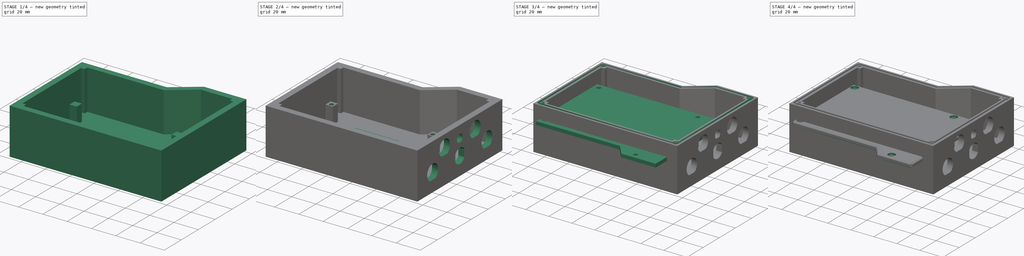
[diagram: build sequence overview — one tinted view per stage of 4, left to right]
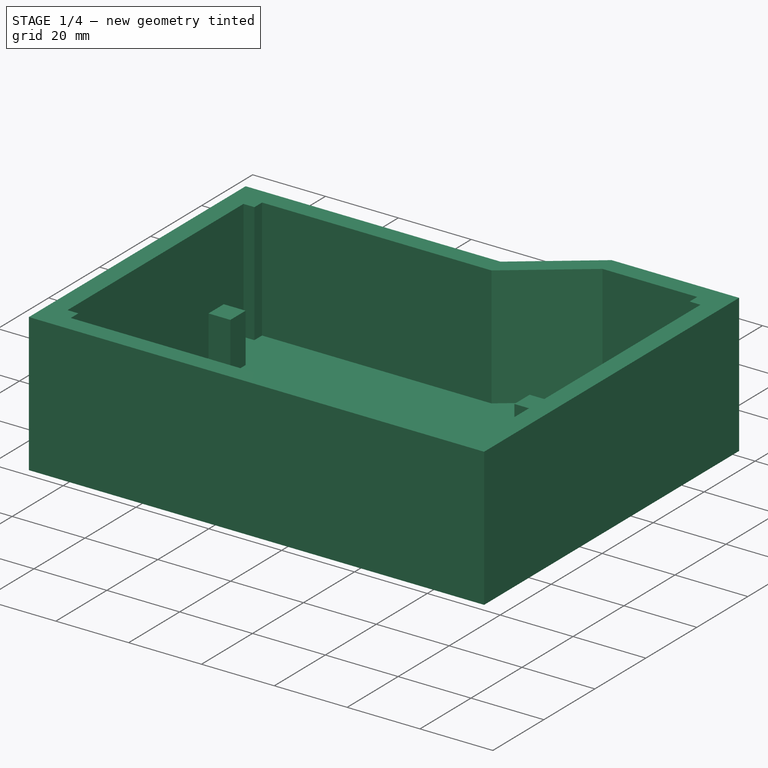
[diagram: stage 1 of 4 — iso view after this stage's code; geometry added in this stage tinted green]
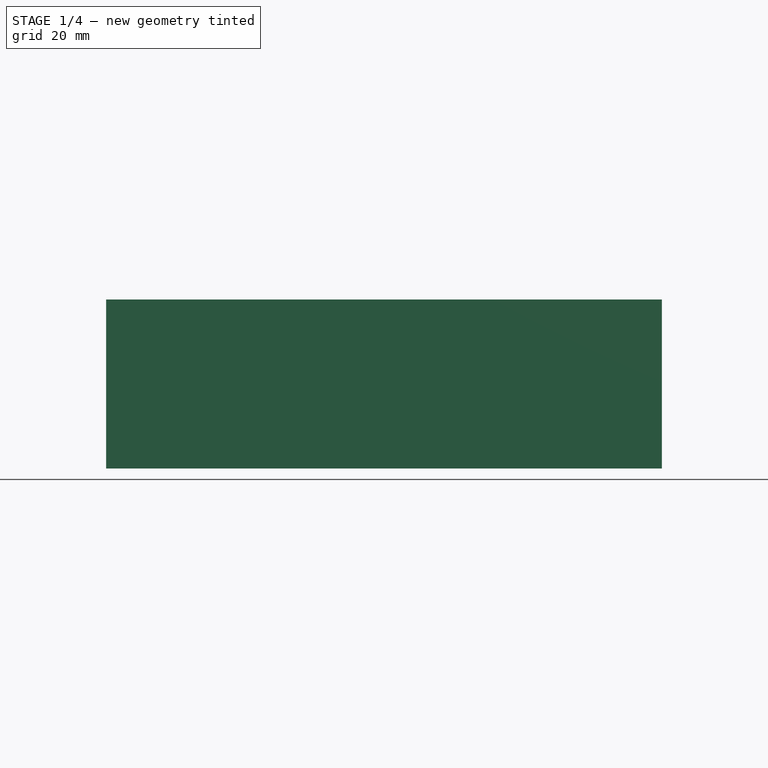
[diagram: stage 1 of 4 — front view after this stage's code; geometry added in this stage tinted green]
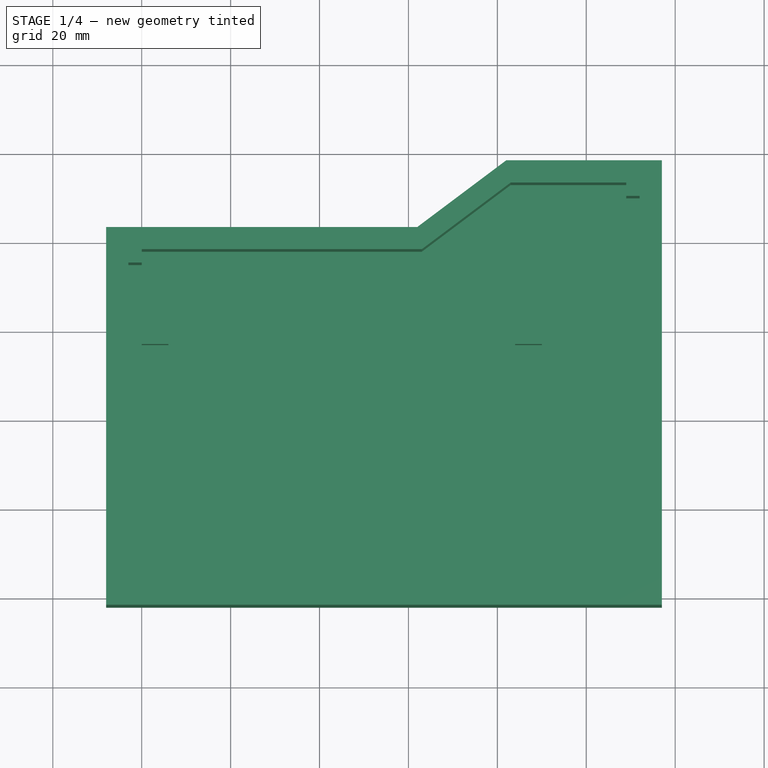
[diagram: stage 1 of 4 — top view after this stage's code; geometry added in this stage tinted green]
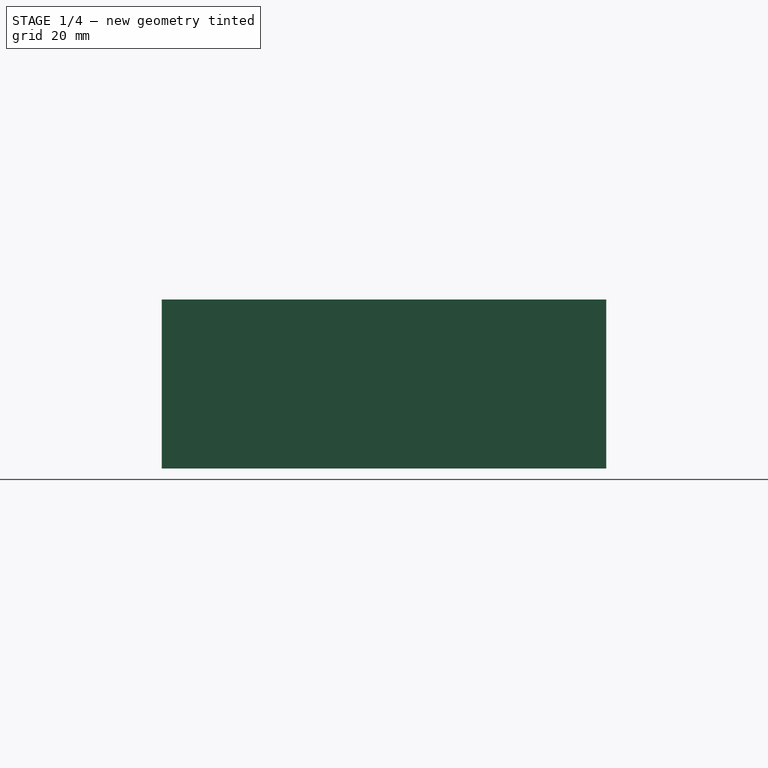
[diagram: stage 1 of 4 — right view after this stage's code; geometry added in this stage tinted green]
FCSTD DOCUMENT  (FreeCAD 1.0R38641 +678 (Git))
Label: KATIPO_1.0.0
License: All rights reserved
LicenseURL: https://en.wikipedia.org/wiki/All_rights_reserved
objects: Part::Feature×57, App::Part×19, Sketcher::SketchObject×14, PartDesign::Pad×5, PartDesign::Pocket×4, PartDesign::ShapeBinder×4, PartDesign::Body×3, PartDesign::Hole×3, PartDesign::Chamfer×1
note: 131 computed .brp shape members not serialized (recipe doc carries the construction recipe); baked Part::Feature solids carry a one-line shape summary decoded from their .brp

FEATURE [Sketcher::SketchObject] Sketch
  ArcFitTolerance = 1e-06
  AttachmentSupport = -> [XY_Plane001]
  FullyConstrained = true
  MakeInternals = false
  MapMode = 5
  sketch-geometry (6):
    g0: LineSegment StartX=-8 StartY=-2 StartZ=0 EndX=117 EndY=-2 EndZ=0
    g1: LineSegment StartX=117 StartY=-2 StartZ=0 EndX=117 EndY=98 EndZ=0
    g2: LineSegment StartX=62 StartY=83 StartZ=0 EndX=-8 EndY=83 EndZ=0
    g3: LineSegment StartX=-8 StartY=83 StartZ=0 EndX=-8 EndY=-2 EndZ=0
    g4: LineSegment StartX=62 StartY=83 StartZ=0 EndX=82 EndY=98 EndZ=0
    g5: LineSegment StartX=82 StartY=98 StartZ=0 EndX=117 EndY=98 EndZ=0
  constraints (18):
    c: Coincident(g2,g3)
    c: Coincident(g3,g0)
    c: Horizontal(g0)
    c: Horizontal(g2)
    c: Vertical(g1)
    c: Vertical(g3)
    c: DistanceY(g3,g3) = 85
    c: DistanceY(g0,g-1) = 2
    c: DistanceX(g0,g-1) = 8
    c: Coincident(g5,g4)
    c: Horizontal(g5)
    c: Coincident(g2,g4)
    c: Coincident(g1,g0)
    c: Coincident(g1,g5)
    c: DistanceX(g2,g2) = 70
    c: DistanceX(g5,g5) = 35
    c: DistanceX(g2,g4) = 20
    c: DistanceY(g2,g4) = 15
FEATURE [PartDesign::Pad] Pad
  Direction = (0,0,1)
  Length = 38
  Length2 = 10
  Profile = -> Sketch
  ReferenceAxis = -> Sketch [N_Axis]
  Refine = true
  Suppressed = false
  Type = 0
FEATURE [Sketcher::SketchObject] Sketch001
  ArcFitTolerance = 1e-06
  AttachmentSupport = -> [Pad]
  FullyConstrained = true
  MakeInternals = false
  MapMode = 5
  Placement = pos=(0,0,38) rot=(0,0,1;0rad)
  sketch-geometry (14):
    g0: LineSegment StartX=-3 StartY=75 StartZ=0 EndX=-3 EndY=6 EndZ=0
    g1: LineSegment StartX=0 StartY=3 StartZ=0 EndX=109 EndY=3 EndZ=0
    g2: LineSegment StartX=109 StartY=3 StartZ=0 EndX=109 EndY=6 EndZ=0
    g3: LineSegment StartX=63 StartY=78 StartZ=0 EndX=0 EndY=78 EndZ=0
    g4: LineSegment StartX=63 StartY=78 StartZ=0 EndX=83 EndY=93 EndZ=0
    g5: LineSegment StartX=83 StartY=93 StartZ=0 EndX=109 EndY=93 EndZ=0
    g6: LineSegment StartX=-3 StartY=75 StartZ=0 EndX=0 EndY=75 EndZ=0
    g7: LineSegment StartX=0 StartY=75 StartZ=0 EndX=0 EndY=78 EndZ=0
    g8: LineSegment StartX=-3 StartY=6 StartZ=0 EndX=0 EndY=6 EndZ=0
    g9: LineSegment StartX=0 StartY=6 StartZ=0 EndX=0 EndY=3 EndZ=0
    g10: LineSegment StartX=109 StartY=90 StartZ=0 EndX=112 EndY=90 EndZ=0
    g11: LineSegment StartX=112 StartY=90 StartZ=0 EndX=112 EndY=6 EndZ=0
    g12: LineSegment StartX=112 StartY=6 StartZ=0 EndX=109 EndY=6 EndZ=0
    g13: LineSegment StartX=109 StartY=90 StartZ=0 EndX=109 EndY=93 EndZ=0
  constraints (43):
    c: Vertical(g0)
    c: Vertical(g2)
    c: Horizontal(g1)
    c: Horizontal(g3)
    c: Coincident(g4,g5)
    c: Horizontal(g5)
    c: Coincident(g3,g4)
    c: DistanceX(g3,g4) = 20
    c: DistanceY(g3,g4) = 15
    c: Horizontal(g6)
    c: Coincident(g6,g7)
    c: Coincident(g8,g9)
    c: Coincident(g3,g7)
    c: Coincident(g0,g6)
    c: Coincident(g0,g8)
    c: Coincident(g1,g9)
    c: DistanceX(g8,g8) = 3
    c: DistanceX(g8,g1) = 0
    c: DistanceY(g0,g8) = 0
    c: DistanceY(g1,g0) = 3
    c: DistanceY(g7,g7) = 3
    c: DistanceX(g0,g6) = 3
    c: DistanceX(g6,g3) = 0
    c: DistanceY(g0,g0) = 69
    c: DistanceX(g-1,g1) = 0
    c: DistanceY(g-1,g1) = 3
    c: DistanceX(g5,g5) = 26
    c: DistanceX(g1,g1) = 109
    c: Coincident(g5,g13)
    c: Coincident(g2,g1)
    c: PointOnObject(g10,g13)
    c: Horizontal(g10)
    c: Coincident(g10,g11)
    c: Vertical(g11)
    c: Coincident(g11,g12)
    c: Horizontal(g12)
    c: DistanceX(g10,g10) = 3
    c: Coincident(g2,g12)
    c: PointOnObject(g13,g10)
    c: DistanceX(g12,g12) = 3
    c: DistanceX(g5,g10) = 0
    c: DistanceY(g10,g5) = 3
    c: DistanceY(g1,g2) = 3
FEATURE [PartDesign::Pocket] Pocket
  BaseFeature = -> Pad
  Direction = (0,0,-1)
  Length = 33
  Length2 = 5
  Profile = -> Sketch001
  ReferenceAxis = -> Sketch001 [N_Axis]
  Refine = true
  Suppressed = false
  Type = 0
FEATURE [PartDesign::Body] Body002
  AllowCompound = false
  Group = -> [CopyPad011,Sketch022,Pad010,Sketch023,Hole002,Sketch024,Pocket007,Chamfer001]
  Origin = -> Origin011
  Placement = pos=(0,0,-2.5) rot=(0,0,1;0rad)
  Tip = -> Chamfer001
FEATURE [App::Part] Part002  label="Roof"
  Group = -> [Body002]
  Origin = -> Origin010
FEATURE [Part::Feature] Part__Feature649  label="SOLID"
  shape: bbox 69.6 x 45 x 3.826 mm, 49 faces (baked)
FEATURE [Part::Feature] Part__Feature650  label="COMPOUND012"
  shape: bbox 32.75 x 7.05 x 4.08 mm, 14 faces, 0 solids (baked)
FEATURE [Part::Feature] Part__Feature651  label="COMPOUND013"
  shape: bbox 65.6 x 17.6 x 4.08 mm, 32 faces, 0 solids (baked)
FEATURE [Part::Feature] Part__Feature652  label="COMPOUND014"
  shape: bbox 32.75 x 7.05 x 4.08 mm, 12 faces, 0 solids (baked)
FEATURE [Part::Feature] Part__Feature653  label="COMPOUND015"
  shape: bbox 63.59 x 1.2 x 0.8 mm, 10 faces, 0 solids (baked)
FEATURE [Part::Feature] Part__Feature654  label="COMPOUND016"
  shape: bbox 65.6 x 39.3 x 1.404 mm, 40 faces, 0 solids (baked)
FEATURE [Part::Feature] Part__Feature655  label="COMPOUND017"
  shape: bbox 63.6 x 1.2 x 0.8 mm, 14 faces, 0 solids (baked)
FEATURE [Part::Feature] Part__Feature656  label="COMPOUND018"
  shape: bbox 12.1 x 8.6 x 5.08 mm, 6 faces, 0 solids (baked)
FEATURE [Part::Feature] Part__Feature657  label="COMPOUND019"
  shape: bbox 12.1 x 8.6 x 5.08 mm, 6 faces, 0 solids (baked)
FEATURE [Part::Feature] Part__Feature658  label="COMPOUND020"
  shape: bbox 37.8 x 38.01 x 2.626 mm, 6 faces, 0 solids (baked)
FEATURE [Part::Feature] Part__Feature659  label="COMPOUND021"
  shape: bbox 14.56 x 14.2 x 1.2 mm, 6 faces, 0 solids (baked)
FEATURE [Part::Feature] Part__Feature660  label="COMPOUND022"
  shape: bbox 14.56 x 14.2 x 1.2 mm, 6 faces, 0 solids (baked)
FEATURE [App::Part] COMPOUND001  label="COMPOUND023"
  Group = -> [Part__Feature650,Part__Feature651,Part__Feature652,Part__Feature653,Part__Feature654,Part__Feature655,Part__Feature656,Part__Feature657,Part__Feature658,Part__Feature659,Part__Feature660]
  Origin = -> Origin016
FEATURE [App::Part] GROGU_BOARD_MEMORY001
  Group = -> [Part__Feature649,COMPOUND001]
  Origin = -> Origin017
  Placement = pos=(73.5,22.5,10) rot=(0,1,0;3.14159rad)
FEATURE [Part::Feature] Part__Feature661  label="SOLID002"
  shape: bbox 13 x 1.9 x 5.3 mm, 967 faces (baked)
FEATURE [App::Part] _051101592  label="5051101592"
  Group = -> [Part__Feature661]
  Origin = -> Origin018
  Placement = pos=(43.85,-5.875,1.595) rot=(0.57735,0.57735,0.57735;2.0944rad)
FEATURE [Part::Feature] Part__Feature662  label="JST_GH_SM04B-GHS-TB_1x04-1MP_P1.25mm_Horizontal"
  Placement = pos=(-5.72665,-26.5,1.595) rot=(0,0,1;0rad)
  shape: bbox 8.25 x 4.95 x 4.25 mm, 203 faces (baked)
FEATURE [Part::Feature] Part__Feature663  label="JST_GH_SM08B-GHS-TB_1x08-1MP_P1.25mm_Horizontal"
  Placement = pos=(-26.5757,-26.4992,1.595) rot=(0,0,1;0rad)
  shape: bbox 13.25 x 4.95 x 4.25 mm, 327 faces (baked)
FEATURE [Part::Feature] Part__Feature664  label="Fusion002"
  shape: bbox 8.45 x 2.54 x 7.3 mm, 40 faces (baked)
FEATURE [Part::Feature] Part__Feature665  label="Fusion001"
  shape: bbox 8.45 x 2.54 x 7.3 mm, 40 faces (baked)
FEATURE [Part::Feature] Part__Feature666  label="Fusion"
  shape: bbox 8.45 x 2.54 x 7.3 mm, 40 faces (baked)
FEATURE [App::Part] _Pin  label="3Pin"
  Group = -> [Part__Feature664,Part__Feature665,Part__Feature666]
  Origin = -> Origin019
  Placement = pos=(30.915,-22.2,-1.405) rot=(0,0,-1;1.5708rad)
FEATURE [Part::Feature] Part__Feature667  label="9774070243R (rev1)"
  Placement = pos=(-36.3167,-25.56,0.095) rot=(0,0,1;0rad)
  shape: bbox 4.35 x 4.35 x 8.4 mm, 6 faces (baked)
FEATURE [Part::Feature] Part__Feature668  label="JST_GH_SM06B-GHS-TB_1x06-1MP_P1.25mm_Horizontal"
  Placement = pos=(-9.96286,26.5,1.595) rot=(0,0,1;3.14159rad)
  shape: bbox 10.75 x 4.95 x 4.25 mm, 265 faces (baked)
FEATURE [Part::Feature] Part__Feature669  label="2998TR--3DModel-STEP-630548"
  Placement = pos=(-37.05,-9.6,4.345) rot=(0.57735,0.57735,0.57735;2.0944rad)
  shape: bbox 8.001 x 10.71 x 3.048 mm, 90 faces (baked)
FEATURE [Part::Feature] Part__Feature670  label="Body004"
  Placement = pos=(0,0,0.1) rot=(0,0,1;0rad)
  shape: bbox 3.5 x 2.9 x 1.35 mm, 6 faces (baked)
FEATURE [Part::Feature] Part__Feature671  label="Pins"
  shape: bbox 1.19 x 0.84 x 0.1 mm, 6 faces (baked)
FEATURE [Part::Feature] Part__Feature672  label="Pins001"
  shape: bbox 1.19 x 0.84 x 0.1 mm, 6 faces (baked)
FEATURE [Part::Feature] Part__Feature673  label="Pins002"
  shape: bbox 1.19 x 0.84 x 0.1 mm, 6 faces (baked)
FEATURE [Part::Feature] Part__Feature674  label="Pins003"
  shape: bbox 1.19 x 0.84 x 0.1 mm, 6 faces (baked)
FEATURE [App::Part] Pins  label="Pins004"
  Group = -> [Part__Feature671,Part__Feature672,Part__Feature673,Part__Feature674]
  Origin = -> Origin020
FEATURE [Part::Feature] Part__Feature675  label="Lugs"
  shape: bbox 0.7 x 0.7 x 1.8 mm, 3 faces (baked)
FEATURE [Part::Feature] Part__Feature676  label="Lugs001"
  shape: bbox 0.7 x 0.7 x 1.8 mm, 3 faces (baked)
FEATURE [App::Part] Lugs  label="Lugs002"
  Group = -> [Part__Feature675,Part__Feature676]
  Origin = -> Origin021
FEATURE [Part::Feature] Part__Feature677  label="SOLID (1)"
  shape: bbox 1.8 x 0.9 x 1 mm, 6 faces (baked)
FEATURE [Part::Feature] Part__Feature678  label="Lugs003"
  shape: bbox 0.7 x 0.7 x 1.8 mm, 3 faces (baked)
FEATURE [Part::Feature] Part__Feature679  label="Lugs004"
  shape: bbox 0.7 x 0.7 x 1.8 mm, 3 faces (baked)
FEATURE [App::Part] Lugs001  label="Lugs005"
  Group = -> [Part__Feature678,Part__Feature679]
  Origin = -> Origin022
FEATURE [App::Part] PTS840GMPSMTRLFS
  Group = -> [Part__Feature670,Pins,Lugs,Part__Feature677,Lugs001]
  Origin = -> Origin023
  Placement = pos=(32.9965,-27.15,1.595) rot=(0,0,1;0rad)
FEATURE [Part::Feature] Part__Feature680  label="SM02B-SRSS-TB_LF__SN_"
  Placement = pos=(-40.625,-1,1.595) rot=(0.57735,-0.57735,-0.57735;2.0944rad)
  shape: bbox 4.95 x 4 x 2.96 mm, 63 faces (baked)
FEATURE [Part::Feature] Part__Feature681  label="SM02B-SRSS-TB_LF__SN_001"
  Placement = pos=(-40.625,-1,1.595) rot=(0.57735,-0.57735,-0.57735;2.0944rad)
  shape: bbox 1.5 x 0.2 x 1.25 mm, 6 faces (baked)
FEATURE [Part::Feature] Part__Feature682  label="SM02B-SRSS-TB_LF__SN_002"
  Placement = pos=(-40.625,-1,1.595) rot=(0.57735,-0.57735,-0.57735;2.0944rad)
  shape: bbox 1.5 x 0.2 x 1.25 mm, 6 faces (baked)
FEATURE [App::Part] SM02B_SRSS_TB_LF__SN_  label="SM02B-SRSS-TB_LF__SN_003"
  Group = -> [Part__Feature680,Part__Feature681,Part__Feature682]
  Origin = -> Origin024
FEATURE [Part::Feature] Part__Feature683  label="2309413-1"
  Placement = pos=(-4.51667,-4.405,6.295) rot=(1,0,0;1.5708rad)
  shape: bbox 76.11 x 25.87 x 9.738 mm, 4240 faces (baked)
FEATURE [Part::Feature] Part__Feature684  label="JST_GH_SM10B-GHS-TB_1x10-1MP_P1.25mm_Horizontal"
  Placement = pos=(29.8343,26.5,1.595) rot=(0,0,1;3.14159rad)
  shape: bbox 15.75 x 4.95 x 4.25 mm, 399 faces (baked)
FEATURE [Part::Feature] Part__Feature685  label="SOLID (2)"
  shape: bbox 6.75 x 6.5 x 3.2 mm, 156 faces (baked)
FEATURE [App::Part] _30470410  label="530470410"
  Group = -> [Part__Feature685]
  Origin = -> Origin025
  Placement = pos=(-42.15,-19.755,4.845) rot=(0.57735,0.57735,0.57735;2.0944rad)
FEATURE [Part::Feature] Part__Feature686  label="2199230-3"
  Placement = pos=(-28.65,-14.45,-2.335) rot=(-1,0,0;1.5708rad)
  shape: bbox 21.92 x 8.716 x 4.716 mm, 1369 faces (baked)
FEATURE [Part::Feature] Part__Feature687  label="9774025243R (rev1)"
  Placement = pos=(35.4425,-11.4634,1.415) rot=(0,1,0;3.14159rad)
  shape: bbox 4.35 x 4.35 x 3.9 mm, 6 faces (baked)
FEATURE [Part::Feature] Part__Feature688  label="2199230-4"
  Placement = pos=(-2.3175,12.94,-2.335) rot=(0.57735,-0.57735,0.57735;4.18879rad)
  shape: bbox 8.716 x 21.92 x 4.716 mm, 1369 faces (baked)
FEATURE [Part::Feature] Part__Feature689  label="SOLID (3)"
  shape: bbox 13.1 x 14.17 x 1.28 mm, 952 faces (baked)
FEATURE [App::Part] _03398_1892  label="503398-1892"
  Group = -> [Part__Feature689]
  Origin = -> Origin026
  Placement = pos=(-36.62,5.655,-0.685) rot=(0.707107,-0.707107,0;3.14159rad)
FEATURE [Part::Feature] Part__Feature690  label="JST_GH_SM08B-GHS-TB_1x08-1MP_P1.25mm_Horizontal001"
  Placement = pos=(3.72286,26.5,1.595) rot=(0,0,1;3.14159rad)
  shape: bbox 13.25 x 4.95 x 4.25 mm, 327 faces (baked)
FEATURE [Part::Feature] Part__Feature691  label="SOLID003"
  shape: bbox 13 x 1.9 x 5.3 mm, 967 faces (baked)
FEATURE [App::Part] _051101593  label="5051101592001"
  Group = -> [Part__Feature691]
  Origin = -> Origin027
  Placement = pos=(43.85,5.875,1.595) rot=(0.57735,0.57735,0.57735;2.0944rad)
FEATURE [Part::Feature] Part__Feature692  label="SOLID004"
  shape: bbox 13 x 1.9 x 5.3 mm, 967 faces (baked)
FEATURE [App::Part] _051101594  label="5051101592002"
  Group = -> [Part__Feature692]
  Origin = -> Origin028
  Placement = pos=(43.85,-17.625,1.595) rot=(0.57735,0.57735,0.57735;2.0944rad)
FEATURE [Part::Feature] Part__Feature693  label="JST_GH_SM04B-GHS-TB_1x04-1MP_P1.25mm_Horizontal001"
  Placement = pos=(16.1486,26.5,1.595) rot=(0,0,1;3.14159rad)
  shape: bbox 8.25 x 4.95 x 4.25 mm, 203 faces (baked)
FEATURE [Part::Feature] Part__Feature694  label="JST_GH_SM04B-GHS-TB_1x04-1MP_P1.25mm_Horizontal002"
  Placement = pos=(-14.9393,-26.4992,1.595) rot=(0,0,1;0rad)
  shape: bbox 8.25 x 4.95 x 4.25 mm, 203 faces (baked)
FEATURE [Part::Feature] Part__Feature695  label="JST_GH_SM06B-GHS-TB_1x06-1MP_P1.25mm_Horizontal001"
  Placement = pos=(18.7857,-26.5,1.595) rot=(0,0,1;0rad)
  shape: bbox 10.75 x 4.95 x 4.25 mm, 265 faces (baked)
FEATURE [Part::Feature] Part__Feature696  label="SOLID005"
  shape: bbox 13 x 1.9 x 5.3 mm, 967 faces (baked)
FEATURE [App::Part] _051101595  label="5051101592003"
  Group = -> [Part__Feature696]
  Origin = -> Origin029
  Placement = pos=(43.85,17.625,1.595) rot=(0.57735,0.57735,0.57735;2.0944rad)
FEATURE [Part::Feature] Part__Feature697  label="JST_GH_SM04B-GHS-TB_1x04-1MP_P1.25mm_Horizontal003"
  Placement = pos=(-33.5943,26.5,1.595) rot=(0,0,1;3.14159rad)
  shape: bbox 8.25 x 4.95 x 4.25 mm, 203 faces (baked)
FEATURE [Part::Feature] Part__Feature698  label="JST_GH_SM06B-GHS-TB_1x06-1MP_P1.25mm_Horizontal002"
  Placement = pos=(-22.4086,26.5,1.595) rot=(0,0,1;3.14159rad)
  shape: bbox 10.75 x 4.95 x 4.25 mm, 265 faces (baked)
FEATURE [Part::Feature] Part__Feature699  label="9774070243R (rev1)001"
  Placement = pos=(27.2833,-25.55,0.095) rot=(0,0,1;0rad)
  shape: bbox 4.35 x 4.35 x 8.4 mm, 6 faces (baked)
FEATURE [Part::Feature] Part__Feature700  label="JST_GH_SM08B-GHS-TB_1x08-1MP_P1.25mm_Horizontal002"
  Placement = pos=(5.91074,-26.5,1.595) rot=(0,0,1;0rad)
  shape: bbox 13.25 x 4.95 x 4.25 mm, 327 faces (baked)
FEATURE [Part::Feature] Part__Feature701  label="9774025243R (rev1)001"
  Placement = pos=(35.4425,12.94,1.415) rot=(0.707107,-0.707107,0;3.14159rad)
  shape: bbox 4.35 x 4.35 x 3.9 mm, 6 faces (baked)
FEATURE [Part::Feature] Part__Feature702  label="9774025243R (rev1)002"
  Placement = pos=(-28.65,23.5,1.415) rot=(1,0,0;3.14159rad)
  shape: bbox 4.35 x 4.35 x 3.9 mm, 6 faces (baked)
FEATURE [Part::Feature] Part__Feature703  label="1-2199230-5"
  Placement = pos=(-2.32,-11.4634,-2.335) rot=(0.57735,-0.57735,0.57735;4.18879rad)
  shape: bbox 8.716 x 21.92 x 4.716 mm, 1369 faces (baked)
FEATURE [Part::Feature] Part__Feature704  label="KP13B-SF-PEJ"
  Placement = pos=(-39.6,0.15,0) rot=(0,0,1;0rad)
  shape: bbox 11.51 x 13.61 x 1.186 mm, 691 faces (baked)
FEATURE [App::Part] KP13B_SF_PEJ_800_  label="KP13B-SF-PEJ(800)"
  Group = -> [Part__Feature704]
  Origin = -> Origin030
  Placement = pos=(-98.2413,3.59999,-0.335) rot=(0.707107,0.707107,0;3.14159rad)
FEATURE [Part::Feature] Part__Feature705  label="lumen_PCB"
  shape: bbox 89.5 x 59 x 1.51 mm, 68 faces (baked)
FEATURE [App::Part] Helios_public  label="Helios-public"
  Group = -> [_051101592,Part__Feature662,Part__Feature663,_Pin,Part__Feature667,Part__Feature668,Part__Feature669,PTS840GMPSMTRLFS,SM02B_SRSS_TB_LF__SN_,Part__Feature683,Part__Feature684,_30470410,Part__Feature686,Part__Feature687,Part__Feature688,_03398_1892,Part__Feature690,_051101593,_051101594,Part__Feature693,Part__Feature694,Part__Feature695,_051101595,Part__Feature697,Part__Feature698,Part__Feature699,+6 more]
  Origin = -> Origin031
  Placement = pos=(45,33,18) rot=(1,0,0;3.14159rad)
FEATURE [PartDesign::Pad] Pad006
  BaseFeature = -> Pocket
  Direction = (0,0,1)
  Length = 15.5
  Length2 = 10
  Profile = -> Sketch015
  ReferenceAxis = -> Sketch015 [N_Axis]
  Refine = true
  Suppressed = false
  Type = 0
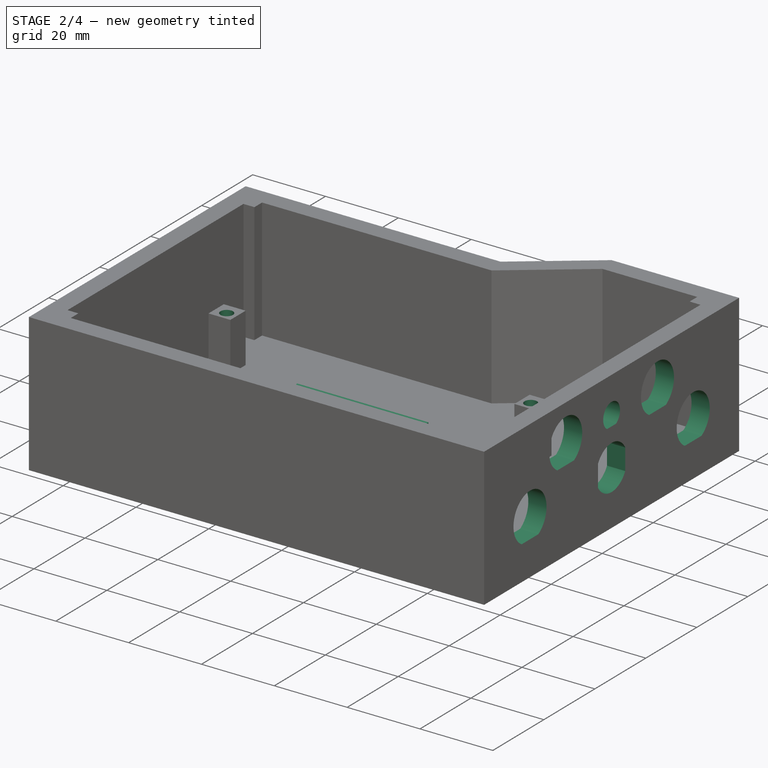
[diagram: stage 2 of 4 — iso view after this stage's code; geometry added in this stage tinted green]
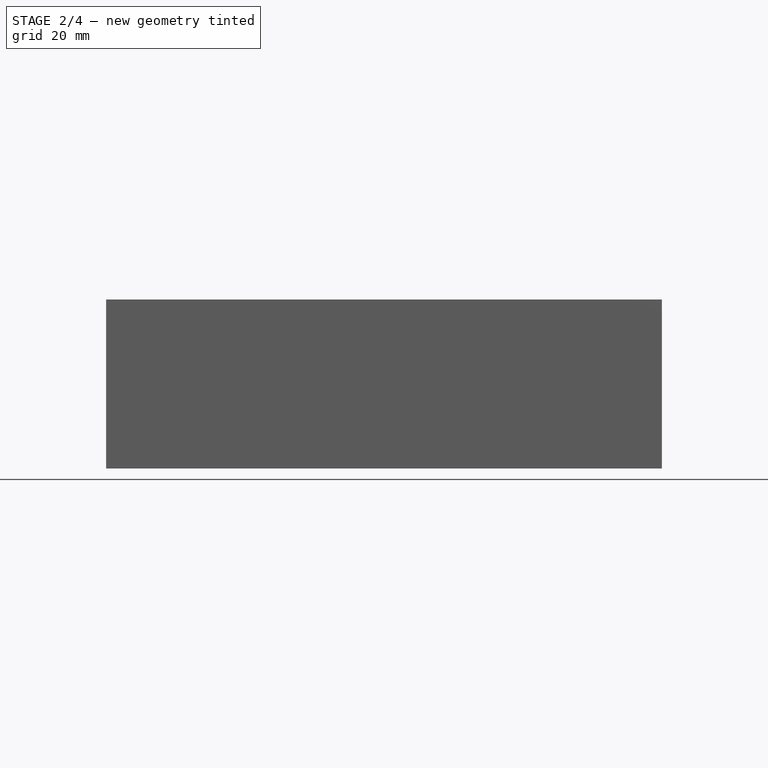
[diagram: stage 2 of 4 — front view after this stage's code; geometry added in this stage tinted green]
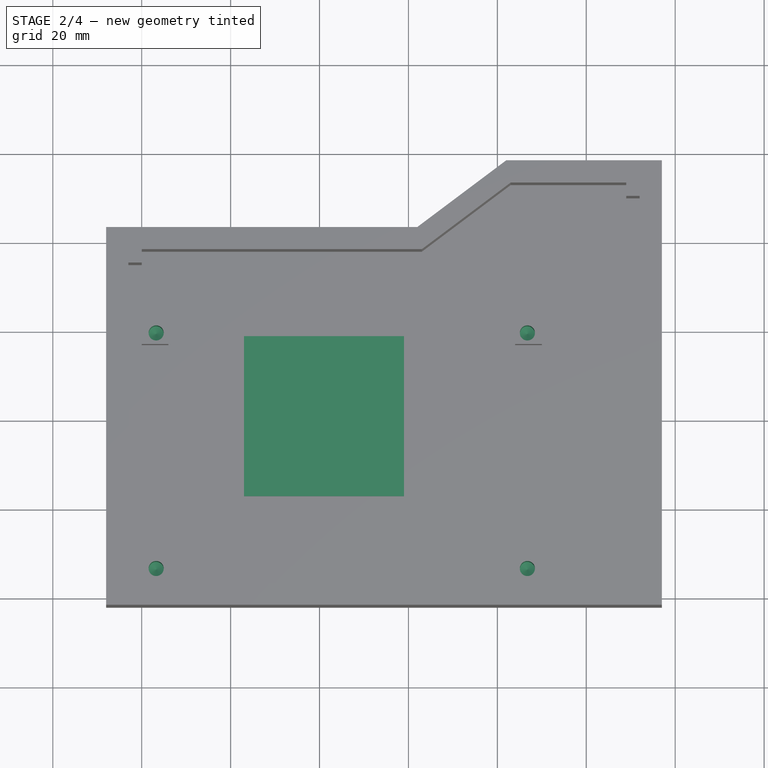
[diagram: stage 2 of 4 — top view after this stage's code; geometry added in this stage tinted green]
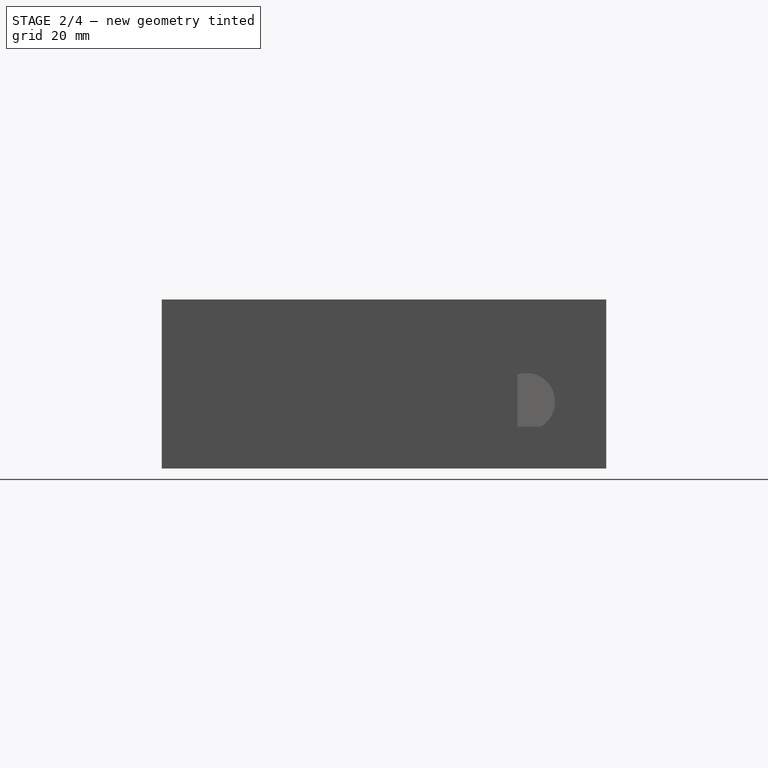
[diagram: stage 2 of 4 — right view after this stage's code; geometry added in this stage tinted green]
FEATURE [Sketcher::SketchObject] Sketch014
  ArcFitTolerance = 1e-06
  ExternalGeometry = -> [Pad006]
  FullyConstrained = true
  MakeInternals = false
  MapMode = 5
  Placement = pos=(117,0,0) rot=(0.57735,0.57735,0.57735;2.0944rad)
  sketch-geometry (19):
    g0: ArcOfCircle CenterX=16 CenterY=15 CenterZ=0 NormalX=0 NormalY=0 NormalZ=1 AngleXU=0 Radius=6.475 StartAngle=5.23984 EndAngle=10.4681
    g1: LineSegment StartX=12.7409 StartY=9.405 StartZ=0 EndX=19.2591 EndY=9.405 EndZ=0
    g2: LineSegment [constr] StartX=16 StartY=21.475 StartZ=0 EndX=16 EndY=9.405 EndZ=0
    g3: ArcOfCircle CenterX=80 CenterY=15 CenterZ=0 NormalX=0 NormalY=0 NormalZ=1 AngleXU=0 Radius=6.475 StartAngle=5.23984 EndAngle=10.4681
    g4: LineSegment StartX=76.7409 StartY=9.405 StartZ=0 EndX=83.2591 EndY=9.405 EndZ=0
    g5: LineSegment [constr] StartX=80 StartY=21.475 StartZ=0 EndX=80 EndY=9.405 EndZ=0
    g6: ArcOfCircle CenterX=66 CenterY=28 CenterZ=0 NormalX=0 NormalY=0 NormalZ=1 AngleXU=0 Radius=6.475 StartAngle=5.23984 EndAngle=10.4681
    g7: LineSegment StartX=62.7409 StartY=22.405 StartZ=0 EndX=69.2591 EndY=22.405 EndZ=0
    g8: LineSegment [constr] StartX=66 StartY=34.475 StartZ=0 EndX=66 EndY=22.405 EndZ=0
    g9: ArcOfCircle CenterX=30 CenterY=28 CenterZ=0 NormalX=0 NormalY=0 NormalZ=1 AngleXU=0 Radius=6.475 StartAngle=5.23984 EndAngle=10.4681
    g10: LineSegment StartX=26.7409 StartY=22.405 StartZ=0 EndX=33.2591 EndY=22.405 EndZ=0
    g11: LineSegment [constr] StartX=30 StartY=34.475 StartZ=0 EndX=30 EndY=22.405 EndZ=0
    g12: ArcOfCircle CenterX=48 CenterY=28 CenterZ=0 NormalX=0 NormalY=0 NormalZ=1 AngleXU=0 Radius=3.3 StartAngle=5.27007 EndAngle=10.4379
    g13: LineSegment [constr] StartX=48 StartY=25.2 StartZ=0 EndX=48 EndY=31.3 EndZ=0
    g14: LineSegment StartX=49.7464 StartY=25.2 StartZ=0 EndX=46.2536 EndY=25.2 EndZ=0
    g15: ArcOfCircle CenterX=48 CenterY=15 CenterZ=0 NormalX=0 NormalY=0 NormalZ=1 AngleXU=0 Radius=6.1 StartAngle=3.6427 EndAngle=5.78207
    g16: LineSegment StartX=42.65 StartY=17.9304 StartZ=0 EndX=42.65 EndY=12.0696 EndZ=0
    g17: LineSegment StartX=53.35 StartY=17.9304 StartZ=0 EndX=53.35 EndY=12.0696 EndZ=0
    g18: ArcOfCircle CenterX=48 CenterY=15 CenterZ=0 NormalX=0 NormalY=0 NormalZ=1 AngleXU=0 Radius=6.1 StartAngle=0.501111 EndAngle=2.64048
  constraints (65):
    c: Diameter(g0) = 12.95
    c: PointOnObject(g2,g0)
    c: Symmetric(g1,g1,g2)
    c: Vertical(g2)
    c: DistanceY(g2,g2) = 12.07
    c: Coincident(g0,g1)
    c: Coincident(g0,g1)
    c: DistanceX(g0,g2) = 0
    c: Diameter(g3) = 12.95
    c: PointOnObject(g5,g3)
    c: Symmetric(g4,g4,g5)
    c: Vertical(g5)
    c: DistanceY(g5,g5) = 12.07
    c: Coincident(g3,g4)
    c: Coincident(g3,g4)
    c: DistanceX(g3,g5) = 0
    c: Diameter(g6) = 12.95
    c: PointOnObject(g8,g6)
    c: Symmetric(g7,g7,g8)
    c: Vertical(g8)
    c: DistanceY(g8,g8) = 12.07
    c: Coincident(g6,g7)
    c: Coincident(g6,g7)
    c: DistanceX(g6,g8) = 0
    c: Diameter(g9) = 12.95
    c: PointOnObject(g11,g9)
    c: Symmetric(g10,g10,g11)
    c: Vertical(g11)
    c: DistanceY(g11,g11) = 12.07
    c: Coincident(g9,g10)
    c: Coincident(g9,g10)
    c: DistanceX(g9,g11) = 0
    c: Diameter(g12) = 6.6
    c: Vertical(g13)
    c: PointOnObject(g13,g12)
    c: DistanceY(g13,g13) = 6.1
    c: PointOnObject(g13,g14)
    c: Coincident(g12,g14)
    c: Coincident(g12,g14)
    c: DistanceY(g12,g12) = 2.8
    c: DistanceX(g13,g12) = 0
    c: Diameter(g15) = 12.2
    c: Vertical(g16)
    c: PointOnObject(g17,g18)
    c: Vertical(g17)
    c: DistanceX(g16,g17) = 10.7
    c: Coincident(g18,g16)
    c: Coincident(g15,g16)
    c: Equal(g15,g18)
    c: Coincident(g15,g17)
    c: PointOnObject(g18,g17)
    c: Coincident(g15,g18)
    c: Equal(g16,g17)
    c: DistanceX(g-3,g0) = 18
    c: DistanceX(g3,g-4) = 18
    c: DistanceX(g6,g-4) = 32
    c: DistanceX(g15,g-4) = 50
    c: DistanceX(g12,g-4) = 50
    c: DistanceX(g-3,g9) = 32
    c: DistanceY(g-3,g0) = 15
    c: DistanceY(g-4,g3) = 15
    c: DistanceY(g-4,g15) = 15
    c: DistanceY(g-4,g6) = 28
    c: DistanceY(g-4,g12) = 28
    c: DistanceY(g-3,g9) = 28
FEATURE [PartDesign::Pad] Pad008
  BaseFeature = -> Pad006
  Direction = (0,0,1)
  Length = 3.5
  Length2 = 10
  Profile = -> Sketch018
  ReferenceAxis = -> Sketch018 [N_Axis]
  Refine = true
  Suppressed = false
  Type = 0
FEATURE [PartDesign::Pocket] Pocket008
  BaseFeature = -> Pad008
  Direction = (-1,-1e-16,1e-16)
  Length = 8
  Length2 = 5
  Profile = -> Sketch014
  ReferenceAxis = -> Sketch014 [N_Axis]
  Refine = true
  Suppressed = false
  Type = 0
FEATURE [Sketcher::SketchObject] Sketch025
  ArcFitTolerance = 1e-06
  AttachmentSupport = -> [Pocket008]
  FullyConstrained = true
  MakeInternals = false
  MapMode = 5
  Placement = pos=(0,0,18.5) rot=(0,0,1;0rad)
  sketch-geometry (4):
    g0: Circle CenterX=3.25 CenterY=59.5 CenterZ=0 NormalX=0 NormalY=0 NormalZ=1 AngleXU=0 Radius=1
    g1: Circle CenterX=3.25 CenterY=6.5 CenterZ=0 NormalX=0 NormalY=0 NormalZ=1 AngleXU=0 Radius=1
    g2: Circle CenterX=86.75 CenterY=6.5 CenterZ=0 NormalX=0 NormalY=0 NormalZ=1 AngleXU=0 Radius=1
    g3: Circle CenterX=86.75 CenterY=59.5 CenterZ=0 NormalX=0 NormalY=0 NormalZ=1 AngleXU=0 Radius=1
  constraints (12):
    c: Radius(g0) = 1
    c: Radius(g3) = 1
    c: Radius(g2) = 1
    c: Radius(g1) = 1
    c: DistanceX(g-1,g1) = 3.25
    c: DistanceX(g-1,g2) = 86.75
    c: DistanceX(g-1,g0) = 3.25
    c: DistanceX(g-1,g3) = 86.75
    c: DistanceY(g-1,g1) = 6.5
    c: DistanceY(g-1,g2) = 6.5
    c: DistanceY(g-1,g0) = 59.5
    c: DistanceY(g-1,g3) = 59.5
FEATURE [PartDesign::Hole] Hole
  BaseFeature = -> Pocket008
  CustomThreadClearance = 0
  Depth = 12
  DepthType = 0
  Diameter = 3.4
  DrillForDepth = false
  DrillPoint = 1
  DrillPointAngle = 118
  HoleCutCountersinkAngle = 90
  HoleCutCustomValues = false
  HoleCutDepth = 0
  HoleCutDiameter = 6.1
  HoleCutType = 0
  ModelThread = false
  Profile = -> Sketch025
  Refine = true
  Suppressed = false
  Tapered = false
  TaperedAngle = 90
  ThreadClass = 0
  ThreadDepth = 12
  ThreadDepthType = 0
  ThreadDirection = 0
  ThreadFit = 0
  ThreadSize = 9
  ThreadType = 1
  Threaded = false
  UseCustomThreadClearance = false
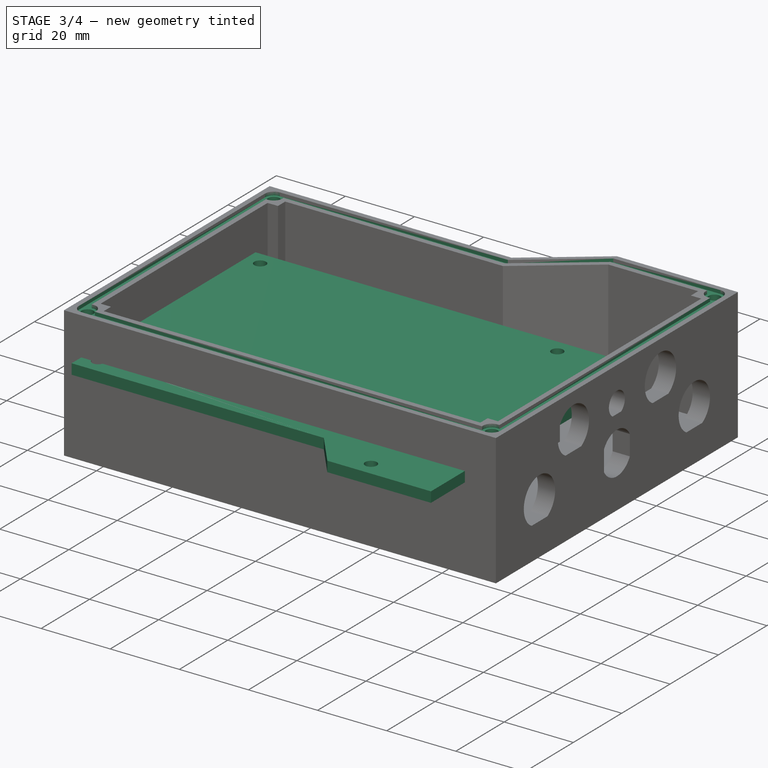
[diagram: stage 3 of 4 — iso view after this stage's code; geometry added in this stage tinted green]
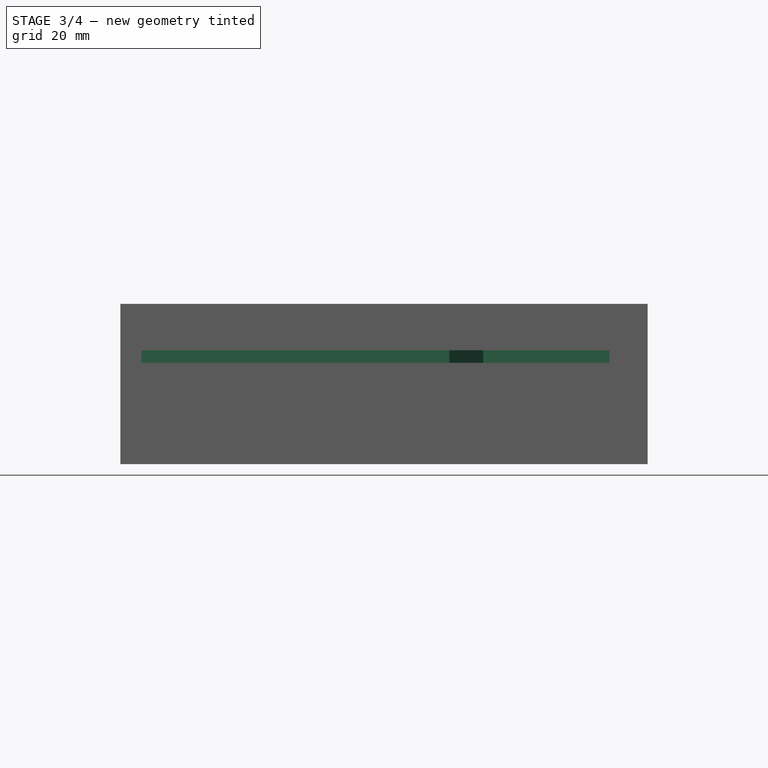
[diagram: stage 3 of 4 — front view after this stage's code; geometry added in this stage tinted green]
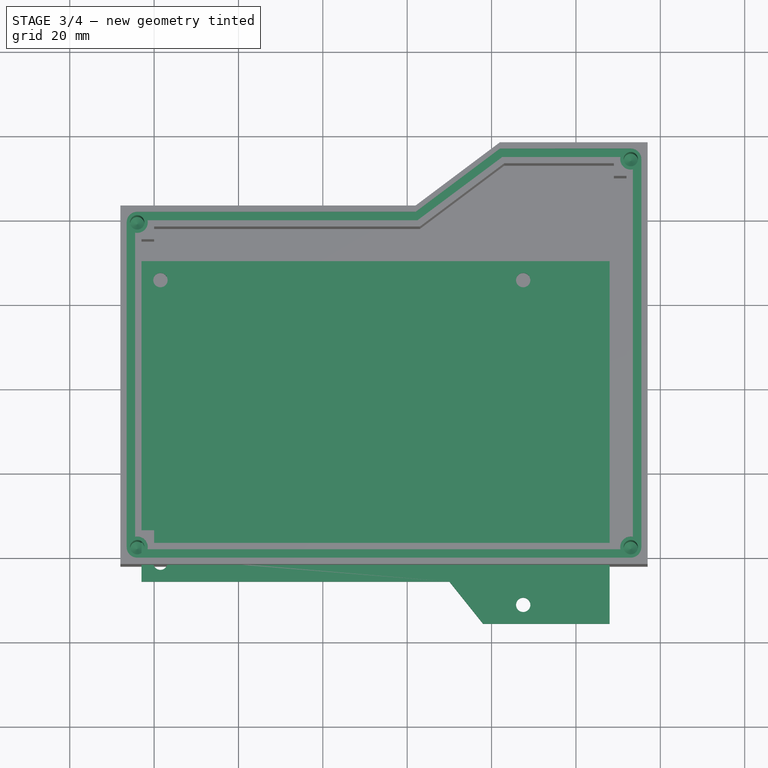
[diagram: stage 3 of 4 — top view after this stage's code; geometry added in this stage tinted green]
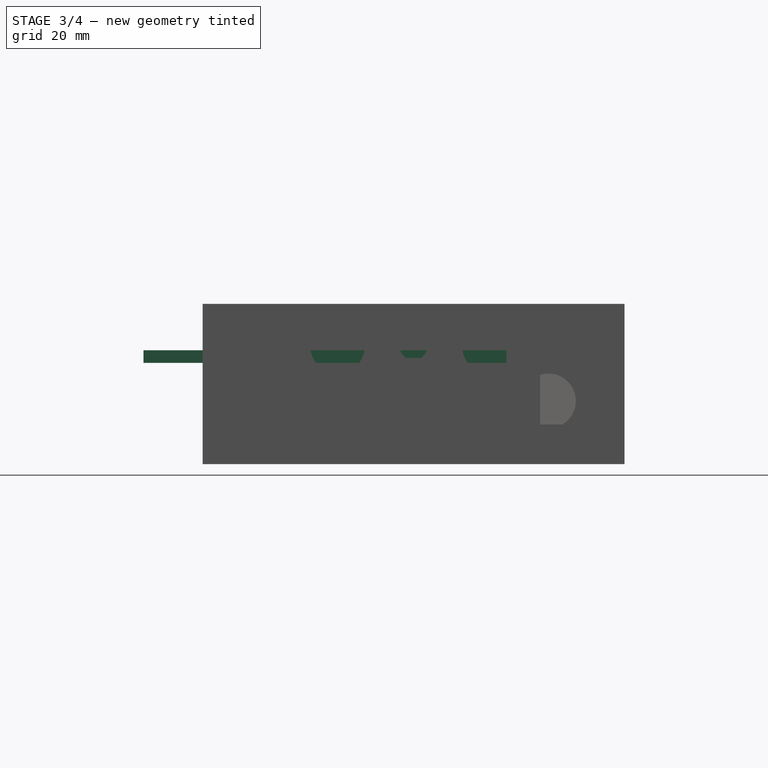
[diagram: stage 3 of 4 — right view after this stage's code; geometry added in this stage tinted green]
FEATURE [PartDesign::ShapeBinder] CopyPad009
  TraceSupport = false
FEATURE [Sketcher::SketchObject] Sketch020
  ArcFitTolerance = 1e-06
  AttachmentSupport = -> [CopyPad009]
  FullyConstrained = true
  MakeInternals = false
  MapMode = 5
  Placement = pos=(0,0,24) rot=(0,0,1;0rad)
  sketch-geometry (6):
    g0: LineSegment StartX=-3 StartY=70 StartZ=0 EndX=108 EndY=70 EndZ=0
    g1: LineSegment StartX=108 StartY=70 StartZ=0 EndX=108 EndY=-16 EndZ=0
    g2: LineSegment StartX=108 StartY=-16 StartZ=0 EndX=78 EndY=-16 EndZ=0
    g3: LineSegment StartX=78 StartY=-16 StartZ=0 EndX=70 EndY=-6 EndZ=0
    g4: LineSegment StartX=70 StartY=-6 StartZ=0 EndX=-3 EndY=-6 EndZ=0
    g5: LineSegment StartX=-3 StartY=-6 StartZ=0 EndX=-3 EndY=70 EndZ=0
  constraints (18):
    c: Horizontal(g0)
    c: Coincident(g0,g1)
    c: Vertical(g1)
    c: Coincident(g1,g2)
    c: Horizontal(g2)
    c: Coincident(g2,g3)
    c: Coincident(g3,g4)
    c: Horizontal(g4)
    c: Coincident(g4,g5)
    c: Coincident(g5,g0)
    c: Vertical(g5)
    c: DistanceX(g4,g-1) = 3
    c: DistanceX(g4,g4) = 73
    c: DistanceX(g0,g0) = 111
    c: DistanceY(g4,g-1) = 6
    c: DistanceY(g5,g5) = 76
    c: DistanceY(g2,g3) = 10
    c: DistanceX(g3,g2) = 8
FEATURE [PartDesign::ShapeBinder] CopyPad010
  TraceSupport = false
FEATURE [Sketcher::SketchObject] Sketch021
  ArcFitTolerance = 1e-06
  AttachmentSupport = -> [CopyPad010]
  FullyConstrained = true
  MakeInternals = false
  MapMode = 5
  Placement = pos=(0,0,24) rot=(0,0,1;0rad)
  sketch-geometry (6):
    g0: LineSegment StartX=-3 StartY=70 StartZ=0 EndX=108 EndY=70 EndZ=0
    g1: LineSegment StartX=108 StartY=70 StartZ=0 EndX=108 EndY=-16 EndZ=0
    g2: LineSegment StartX=108 StartY=-16 StartZ=0 EndX=78 EndY=-16 EndZ=0
    g3: LineSegment StartX=78 StartY=-16 StartZ=0 EndX=70 EndY=-6 EndZ=0
    g4: LineSegment StartX=70 StartY=-6 StartZ=0 EndX=-3 EndY=-6 EndZ=0
    g5: LineSegment StartX=-3 StartY=-6 StartZ=0 EndX=-3 EndY=70 EndZ=0
  constraints (18):
    c: Horizontal(g0)
    c: Coincident(g0,g1)
    c: Vertical(g1)
    c: Coincident(g1,g2)
    c: Horizontal(g2)
    c: Coincident(g2,g3)
    c: Coincident(g3,g4)
    c: Horizontal(g4)
    c: Coincident(g4,g5)
    c: Coincident(g5,g0)
    c: Vertical(g5)
    c: DistanceX(g4,g-1) = 3
    c: DistanceY(g4,g-1) = 6
    c: DistanceY(g5,g5) = 76
    c: DistanceX(g0,g0) = 111
    c: DistanceX(g4,g4) = 73
    c: DistanceX(g3,g2) = 8
    c: DistanceY(g2,g3) = 10
FEATURE [PartDesign::Body] Body003
  AllowCompound = false
  Group = -> [CopyPad008,Sketch019,Pad009,CopyPad009,Sketch020,CopyPad010,Sketch021]
  Origin = -> Origin013
  Tip = -> Pad009
FEATURE [App::Part] Part003  label="Ring"
  Group = -> [Body003]
  Origin = -> Origin012
FEATURE [PartDesign::ShapeBinder] CopyPad011
  TraceSupport = false
FEATURE [Sketcher::SketchObject] Sketch022
  ArcFitTolerance = 1e-06
  AttachmentSupport = -> [CopyPad011]
  FullyConstrained = true
  MakeInternals = false
  MapMode = 5
  Placement = pos=(0,0,24) rot=(0,0,1;0rad)
  sketch-geometry (6):
    g0: LineSegment StartX=-3 StartY=-6 StartZ=0 EndX=70 EndY=-6 EndZ=0
    g1: LineSegment StartX=70 StartY=-6 StartZ=0 EndX=78 EndY=-16 EndZ=0
    g2: LineSegment StartX=78 StartY=-16 StartZ=0 EndX=108 EndY=-16 EndZ=0
    g3: LineSegment StartX=108 StartY=-16 StartZ=0 EndX=108 EndY=70 EndZ=0
    g4: LineSegment StartX=108 StartY=70 StartZ=0 EndX=-3 EndY=70 EndZ=0
    g5: LineSegment StartX=-3 StartY=70 StartZ=0 EndX=-3 EndY=-6 EndZ=0
  constraints (18):
    c: Horizontal(g0)
    c: Coincident(g0,g1)
    c: Coincident(g1,g2)
    c: Horizontal(g2)
    c: Coincident(g2,g3)
    c: Vertical(g3)
    c: Coincident(g3,g4)
    c: Horizontal(g4)
    c: Coincident(g4,g5)
    c: Coincident(g5,g0)
    c: Vertical(g5)
    c: DistanceX(g4,g4) = 111
    c: DistanceX(g0,g0) = 73
    c: DistanceX(g0,g-1) = 3
    c: DistanceX(g0,g1) = 8
    c: DistanceY(g5,g5) = 76
    c: DistanceY(g0,g-1) = 6
    c: DistanceY(g1,g0) = 10
FEATURE [PartDesign::Pad] Pad010
  Direction = (0,0,1)
  Length = 3
  Length2 = 10
  Profile = -> Sketch022
  ReferenceAxis = -> Sketch022 [N_Axis]
  Refine = true
  Suppressed = false
  Type = 0
FEATURE [Sketcher::SketchObject] Sketch023
  ArcFitTolerance = 1e-06
  AttachmentSupport = -> [Pad010]
  ExternalGeometry = -> [Pad010]
  FullyConstrained = true
  MakeInternals = false
  MapMode = 5
  Placement = pos=(0,0,27) rot=(0,0,1;0rad)
  sketch-geometry (4):
    g0: Circle CenterX=1.5 CenterY=65.5 CenterZ=0 NormalX=0 NormalY=0 NormalZ=1 AngleXU=0 Radius=2
    g1: Circle CenterX=87.5 CenterY=65.5 CenterZ=0 NormalX=0 NormalY=0 NormalZ=1 AngleXU=0 Radius=2
    g2: Circle CenterX=87.5 CenterY=-11.5 CenterZ=0 NormalX=0 NormalY=0 NormalZ=1 AngleXU=0 Radius=2
    g3: Circle CenterX=1.5 CenterY=-1.5 CenterZ=0 NormalX=0 NormalY=0 NormalZ=1 AngleXU=0 Radius=2
  constraints (12):
    c: DistanceX(g-3,g0) = 4.5
    c: DistanceX(g1,g-6) = 20.5
    c: DistanceX(g2,g-5) = 20.5
    c: DistanceX(g-4,g3) = 4.5
    c: DistanceY(g0,g-3) = 4.5
    c: DistanceY(g-4,g3) = 4.5
    c: DistanceY(g-5,g2) = 4.5
    c: DistanceY(g1,g-6) = 4.5
    c: Radius(g0) = 2
    c: Radius(g1) = 2
    c: Radius(g2) = 2
    c: Radius(g3) = 2
FEATURE [PartDesign::Hole] Hole002
  BaseFeature = -> Pad010
  CustomThreadClearance = 0
  Depth = 3
  DepthType = 0
  Diameter = 3.4
  DrillForDepth = false
  DrillPoint = 1
  DrillPointAngle = 118
  HoleCutCountersinkAngle = 90
  HoleCutCustomValues = false
  HoleCutDepth = 0
  HoleCutDiameter = 6.1
  HoleCutType = 0
  ModelThread = false
  Profile = -> Sketch023
  Refine = true
  Suppressed = false
  Tapered = false
  TaperedAngle = 90
  ThreadClass = 0
  ThreadDepth = 3
  ThreadDepthType = 0
  ThreadDirection = 0
  ThreadFit = 0
  ThreadSize = 9
  ThreadType = 1
  Threaded = false
  UseCustomThreadClearance = false
FEATURE [Sketcher::SketchObject] Sketch026
  ArcFitTolerance = 1e-06
  AttachmentSupport = -> [Hole]
  FullyConstrained = true
  MakeInternals = false
  MapMode = 5
  Placement = pos=(0,0,38) rot=(0,0,1;0rad)
  sketch-geometry (4):
    g0: Circle CenterX=-4 CenterY=79 CenterZ=0 NormalX=0 NormalY=0 NormalZ=1 AngleXU=0 Radius=1
    g1: Circle CenterX=113 CenterY=94 CenterZ=0 NormalX=0 NormalY=0 NormalZ=1 AngleXU=0 Radius=1
    g2: Circle CenterX=113 CenterY=2 CenterZ=0 NormalX=0 NormalY=0 NormalZ=1 AngleXU=0 Radius=1
    g3: Circle CenterX=-4 CenterY=2 CenterZ=0 NormalX=0 NormalY=0 NormalZ=1 AngleXU=0 Radius=1
  constraints (12):
    c: DistanceX(g0,g-1) = 4
    c: DistanceX(g3,g-1) = 4
    c: DistanceX(g-1,g2) = 113
    c: DistanceX(g-1,g1) = 113
    c: Radius(g0) = 1
    c: Radius(g1) = 1
    c: Radius(g2) = 1
    c: Radius(g3) = 1
    c: DistanceY(g-1,g3) = 2
    c: DistanceY(g-1,g0) = 79
    c: DistanceY(g-1,g2) = 2
    c: DistanceY(g-1,g1) = 94
FEATURE [PartDesign::Hole] Hole003
  BaseFeature = -> Hole
  CustomThreadClearance = 0
  Depth = 25
  DepthType = 0
  Diameter = 3.4
  DrillForDepth = false
  DrillPoint = 1
  DrillPointAngle = 118
  HoleCutCountersinkAngle = 90
  HoleCutCustomValues = false
  HoleCutDepth = 0
  HoleCutDiameter = 6.1
  HoleCutType = 0
  ModelThread = false
  Profile = -> Sketch026
  Refine = true
  Suppressed = false
  Tapered = false
  TaperedAngle = 90
  ThreadClass = 0
  ThreadDepth = 25
  ThreadDepthType = 0
  ThreadDirection = 0
  ThreadFit = 0
  ThreadSize = 9
  ThreadType = 1
  Threaded = false
  UseCustomThreadClearance = false
FEATURE [Sketcher::SketchObject] Sketch027
  ArcFitTolerance = 1e-06
  AttachmentSupport = -> [Hole003]
  ExternalGeometry = -> [Hole003]
  FullyConstrained = true
  MakeInternals = false
  MapMode = 5
  Placement = pos=(0,0,38) rot=(0,0,1;0rad)
  sketch-geometry (20):
    g0: ArcOfCircle CenterX=-4 CenterY=79 CenterZ=0 NormalX=0 NormalY=0 NormalZ=1 AngleXU=0 Radius=2.5 StartAngle=4.51103 EndAngle=6.48454
    g1: ArcOfCircle CenterX=-4 CenterY=2 CenterZ=0 NormalX=0 NormalY=0 NormalZ=1 AngleXU=0 Radius=2.5 StartAngle=3.14159 EndAngle=4.71239
    g2: ArcOfCircle CenterX=113 CenterY=2 CenterZ=0 NormalX=0 NormalY=0 NormalZ=1 AngleXU=0 Radius=2.5 StartAngle=4.71239 EndAngle=6.28319
    g3: ArcOfCircle CenterX=113 CenterY=94 CenterZ=0 NormalX=0 NormalY=0 NormalZ=1 AngleXU=0 Radius=2.5 StartAngle=2.31541e-08 EndAngle=1.5708
    g4: LineSegment StartX=-6.5 StartY=79 StartZ=0 EndX=-6.5 EndY=2 EndZ=0
    g5: LineSegment StartX=-4.5 StartY=4.44949 StartZ=0 EndX=-4.5 EndY=76.5505 EndZ=0
    g6: LineSegment StartX=-4 StartY=-0.5 StartZ=0 EndX=113 EndY=-0.5 EndZ=0
    g7: LineSegment StartX=110.551 StartY=1.5 StartZ=0 EndX=-1.55051 EndY=1.5 EndZ=0
    g8: ArcOfCircle CenterX=-4 CenterY=2 CenterZ=0 NormalX=0 NormalY=0 NormalZ=1 AngleXU=0 Radius=2.5 StartAngle=6.08183 EndAngle=8.05534
    g9: LineSegment StartX=115.5 StartY=94 StartZ=0 EndX=115.5 EndY=2 EndZ=0
    g10: LineSegment StartX=113.5 StartY=4.44949 StartZ=0 EndX=113.5 EndY=91.5505 EndZ=0
    g11: ArcOfCircle CenterX=113 CenterY=2 CenterZ=0 NormalX=0 NormalY=0 NormalZ=1 AngleXU=0 Radius=2.5 StartAngle=1.36944 EndAngle=3.34295
    g12: LineSegment StartX=-4 StartY=81.5 StartZ=0 EndX=62 EndY=81.5 EndZ=0
    g13: LineSegment StartX=62 StartY=81.5 StartZ=0 EndX=82 EndY=96.5 EndZ=0
    g14: LineSegment StartX=82 StartY=96.5 StartZ=0 EndX=113 EndY=96.5 EndZ=0
    g15: LineSegment StartX=110.551 StartY=94.5 StartZ=0 EndX=82.5505 EndY=94.5 EndZ=0
    g16: LineSegment StartX=82.5505 StartY=94.5 StartZ=0 EndX=62.4495 EndY=79.5 EndZ=0
    g17: LineSegment StartX=62.4495 StartY=79.5 StartZ=0 EndX=-1.55051 EndY=79.5 EndZ=0
    g18: ArcOfCircle CenterX=113 CenterY=94 CenterZ=0 NormalX=0 NormalY=0 NormalZ=1 AngleXU=0 Radius=2.5 StartAngle=2.94023 EndAngle=4.91375
    g19: ArcOfCircle CenterX=-4 CenterY=79 CenterZ=0 NormalX=0 NormalY=0 NormalZ=1 AngleXU=0 Radius=2.5 StartAngle=1.5708 EndAngle=3.14159
  constraints (61):
    c: Coincident(g0,g-3)
    c: Coincident(g1,g-6)
    c: Coincident(g2,g-5)
    c: Coincident(g3,g-4)
    c: Radius(g0) = 2.5
    c: Radius(g1) = 2.5
    c: Radius(g3) = 2.5
    c: Radius(g2) = 2.5
    c: Vertical(g4)
    c: Vertical(g5)
    c: DistanceX(g4,g0) = 2.5
    c: DistanceX(g4,g5) = 2
    c: Coincident(g19,g4)
    c: Coincident(g0,g5)
    c: Coincident(g8,g5)
    c: Coincident(g1,g4)
    c: Horizontal(g6)
    c: PointOnObject(g7,g8)
    c: Horizontal(g7)
    c: DistanceY(g6,g7) = 2
    c: Equal(g1,g8)
    c: Tangent(g1,g6) = -1.5708
    c: PointOnObject(g8,g7)
    c: Coincident(g1,g8)
    c: Coincident(g11,g7)
    c: Coincident(g2,g6)
    c: Vertical(g9)
    c: PointOnObject(g10,g11)
    c: Vertical(g10)
    c: DistanceX(g10,g9) = 2
    c: Equal(g2,g11)
    c: Tangent(g2,g9) = 1.5708
    c: PointOnObject(g11,g10)
    c: Coincident(g2,g11)
    c: Coincident(g18,g10)
    c: Coincident(g3,g9)
    c: PointOnObject(g12,g19)
    c: Horizontal(g12)
    c: Coincident(g12,g13)
    c: Coincident(g13,g14)
    c: Horizontal(g14)
    c: PointOnObject(g15,g18)
    c: Horizontal(g15)
    c: Coincident(g15,g16)
    c: Coincident(g16,g17)
    c: Horizontal(g17)
    c: DistanceY(g0,g12) = 2.5
    c: DistanceY(g17,g12) = 2
    c: DistanceY(g15,g14) = 2
    c: DistanceX(g12,g12) = 66
    c: DistanceX(g14,g14) = 31
    c: DistanceX(g17,g17) = 64
    c: DistanceX(g15,g15) = 28
    c: Equal(g3,g18)
    c: Tangent(g3,g14) = 1.5708
    c: PointOnObject(g18,g15)
    c: Coincident(g3,g18)
    c: Equal(g0,g19)
    c: Coincident(g0,g17)
    c: PointOnObject(g19,g12)
    c: Coincident(g0,g19)
FEATURE [PartDesign::Pocket] Pocket009
  BaseFeature = -> Hole003
  Direction = (0,0,-1)
  Length = 1
  Length2 = 5
  Profile = -> Sketch027
  ReferenceAxis = -> Sketch027 [N_Axis]
  Refine = true
  Suppressed = false
  Type = 0
FEATURE [PartDesign::Body] Body
  AllowCompound = false
  Group = -> [Sketch,Pad,Sketch001,Pocket,Sketch014,Sketch015,Pad006,Sketch018,Pad008,Pocket008,Sketch025,Hole,Sketch026,Hole003,Sketch027,Pocket009]
  Origin = -> Origin001
  Placement = pos=(0,0,-2.5) rot=(0,0,1;0rad)
  Tip = -> Pocket009
FEATURE [App::Part] Part  label="Chassis"
  Group = -> [Body]
  Origin = -> Origin
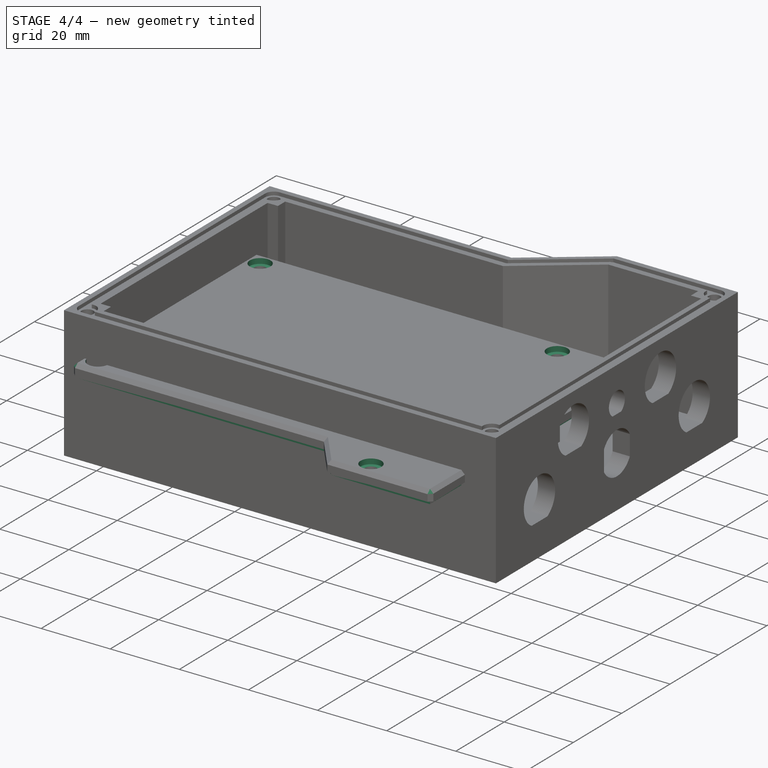
[diagram: stage 4 of 4 — iso view after this stage's code; geometry added in this stage tinted green]
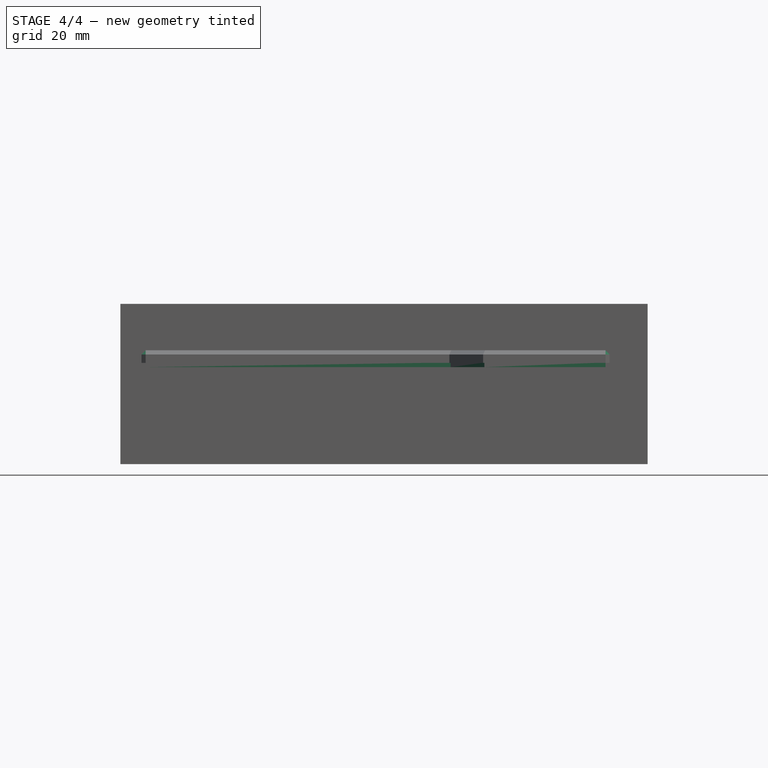
[diagram: stage 4 of 4 — front view after this stage's code; geometry added in this stage tinted green]
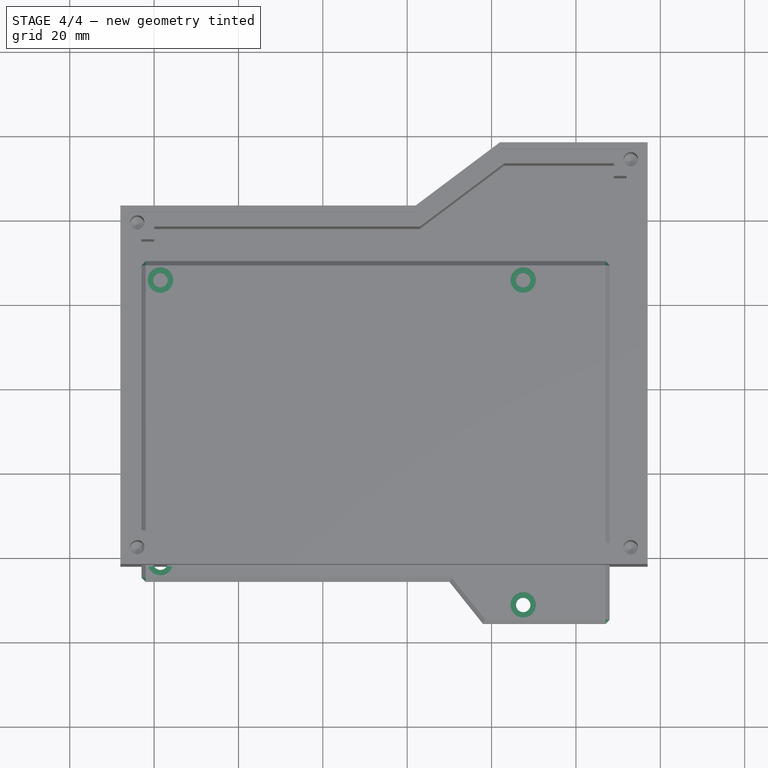
[diagram: stage 4 of 4 — top view after this stage's code; geometry added in this stage tinted green]
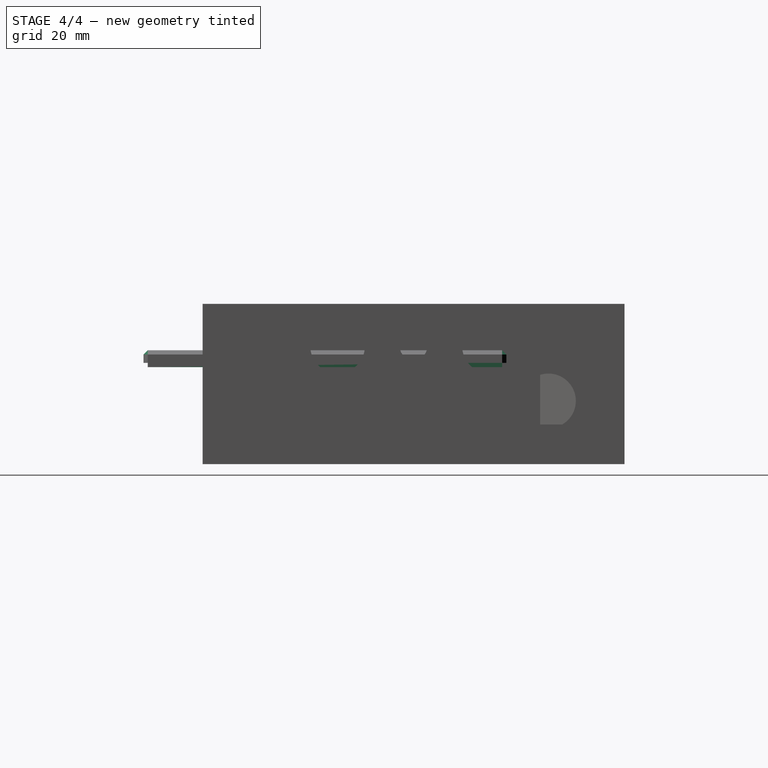
[diagram: stage 4 of 4 — right view after this stage's code; geometry added in this stage tinted green]
FEATURE [Sketcher::SketchObject] Sketch015
  ArcFitTolerance = 1e-06
  FullyConstrained = true
  MakeInternals = false
  MapMode = 5
  Placement = pos=(0,0,3) rot=(0,0,1;0rad)
  sketch-geometry (16):
    g0: LineSegment StartX=0 StartY=63 StartZ=0 EndX=0 EndY=57 EndZ=0
    g1: LineSegment StartX=0 StartY=57 StartZ=0 EndX=6 EndY=57 EndZ=0
    g2: LineSegment StartX=6 StartY=57 StartZ=0 EndX=6 EndY=63 EndZ=0
    g3: LineSegment StartX=6 StartY=63 StartZ=0 EndX=0 EndY=63 EndZ=0
    g4: LineSegment StartX=90 StartY=63 StartZ=0 EndX=84 EndY=63 EndZ=0
    g5: LineSegment StartX=84 StartY=63 StartZ=0 EndX=84 EndY=57 EndZ=0
    g6: LineSegment StartX=84 StartY=57 StartZ=0 EndX=90 EndY=57 EndZ=0
    g7: LineSegment StartX=90 StartY=57 StartZ=0 EndX=90 EndY=63 EndZ=0
    g8: LineSegment StartX=0 StartY=9 StartZ=0 EndX=0 EndY=3 EndZ=0
    g9: LineSegment StartX=0 StartY=3 StartZ=0 EndX=6 EndY=3 EndZ=0
    g10: LineSegment StartX=6 StartY=3 StartZ=0 EndX=6 EndY=9 EndZ=0
    g11: LineSegment StartX=6 StartY=9 StartZ=0 EndX=0 EndY=9 EndZ=0
    g12: LineSegment StartX=84 StartY=9 StartZ=0 EndX=84 EndY=3 EndZ=0
    g13: LineSegment StartX=84 StartY=3 StartZ=0 EndX=90 EndY=3 EndZ=0
    g14: LineSegment StartX=90 StartY=3 StartZ=0 EndX=90 EndY=9 EndZ=0
    g15: LineSegment StartX=90 StartY=9 StartZ=0 EndX=84 EndY=9 EndZ=0
  constraints (48):
    c: Coincident(g0,g1)
    c: Coincident(g1,g2)
    c: Coincident(g2,g3)
    c: Coincident(g3,g0)
    c: Vertical(g0)
    c: Vertical(g2)
    c: Horizontal(g1)
    c: Horizontal(g3)
    c: Coincident(g4,g5)
    c: Coincident(g5,g6)
    c: Coincident(g6,g7)
    c: Coincident(g7,g4)
    c: Horizontal(g4)
    c: Horizontal(g6)
    c: Vertical(g5)
    c: Vertical(g7)
    c: DistanceX(g3,g3) = 6
    c: DistanceY(g2,g2) = 6
    c: DistanceY(g7,g7) = 6
    c: DistanceX(g4,g4) = 6
    c: DistanceX(g2,g4) = 78
    c: DistanceY(g4,g2) = 0
    c: DistanceY(g-1,g0) = 57
    c: DistanceX(g-1,g0) = 0
    c: Coincident(g8,g9)
    c: Coincident(g9,g10)
    c: Coincident(g10,g11)
    c: Coincident(g11,g8)
    c: Vertical(g8)
    c: Vertical(g10)
    c: Horizontal(g9)
    c: Horizontal(g11)
    c: Coincident(g12,g13)
    c: Coincident(g13,g14)
    c: Coincident(g14,g15)
    c: Coincident(g15,g12)
    c: Vertical(g12)
    c: Vertical(g14)
    c: Horizontal(g13)
    c: Horizontal(g15)
    c: DistanceX(g11,g11) = 6
    c: DistanceX(g13,g13) = 6
    c: DistanceX(g-1,g8) = 0
    c: DistanceX(g-1,g12) = 84
    c: DistanceY(g10,g10) = 6
    c: DistanceY(g14,g14) = 6
    c: DistanceY(g-1,g8) = 3
    c: DistanceY(g-1,g12) = 3
FEATURE [Sketcher::SketchObject] Sketch018
  ArcFitTolerance = 1e-06
  FullyConstrained = true
  MakeInternals = false
  MapMode = 5
  Placement = pos=(0,0,3) rot=(0,0,1;0rad)
  sketch-geometry (4):
    g0: LineSegment StartX=23 StartY=59 StartZ=0 EndX=23 EndY=23 EndZ=0
    g1: LineSegment StartX=23 StartY=23 StartZ=0 EndX=59 EndY=23 EndZ=0
    g2: LineSegment StartX=59 StartY=23 StartZ=0 EndX=59 EndY=59 EndZ=0
    g3: LineSegment StartX=59 StartY=59 StartZ=0 EndX=23 EndY=59 EndZ=0
  constraints (12):
    c: Coincident(g0,g1)
    c: Coincident(g1,g2)
    c: Coincident(g2,g3)
    c: Coincident(g3,g0)
    c: Vertical(g0)
    c: Vertical(g2)
    c: Horizontal(g1)
    c: Horizontal(g3)
    c: DistanceX(g-1,g0) = 23
    c: DistanceX(g1,g1) = 36
    c: DistanceY(g-1,g0) = 23
    c: DistanceY(g0,g0) = 36
FEATURE [PartDesign::ShapeBinder] CopyPad008
  Placement = pos=(0,0,-1) rot=(0,0,1;0rad)
  TraceSupport = false
FEATURE [Sketcher::SketchObject] Sketch019
  ArcFitTolerance = 1e-06
  AttachmentSupport = -> [CopyPad008]
  ExternalGeometry = -> [CopyPad008]
  FullyConstrained = true
  MakeInternals = false
  MapMode = 5
  Placement = pos=(0,0,23) rot=(0,0,1;0rad)
  sketch-geometry (12):
    g0: LineSegment StartX=-2 StartY=69 StartZ=0 EndX=107 EndY=69 EndZ=0
    g1: LineSegment StartX=107 StartY=69 StartZ=0 EndX=107 EndY=-15 EndZ=0
    g2: LineSegment StartX=107 StartY=-15 StartZ=0 EndX=78.3 EndY=-15 EndZ=0
    g3: LineSegment StartX=78.3 StartY=-15 StartZ=0 EndX=70.3 EndY=-5 EndZ=0
    g4: LineSegment StartX=70.3 StartY=-5 StartZ=0 EndX=-2 EndY=-5 EndZ=0
    g5: LineSegment StartX=-1 StartY=68 StartZ=0 EndX=106 EndY=68 EndZ=0
    g6: LineSegment StartX=106 StartY=68 StartZ=0 EndX=106 EndY=-14 EndZ=0
    g7: LineSegment StartX=106 StartY=-14 StartZ=0 EndX=78.6 EndY=-14 EndZ=0
    g8: LineSegment StartX=-1 StartY=-4 StartZ=0 EndX=-1 EndY=68 EndZ=0
    g9: LineSegment StartX=-2 StartY=69 StartZ=0 EndX=-2 EndY=-5 EndZ=0
    g10: LineSegment StartX=-1 StartY=-4 StartZ=0 EndX=70.6 EndY=-4 EndZ=0
    g11: LineSegment StartX=70.6 StartY=-4 StartZ=0 EndX=78.6 EndY=-14 EndZ=0
  constraints (25):
    c: Coincident(g0,g-3)
    c: Coincident(g0,g-4)
    c: Coincident(g0,g1)
    c: Coincident(g1,g-5)
    c: Coincident(g1,g2)
    c: Coincident(g2,g-6)
    c: Coincident(g2,g3)
    c: Coincident(g3,g-7)
    c: Coincident(g3,g4)
    c: Coincident(g4,g-8)
    c: Coincident(g5,g-13)
    c: Coincident(g5,g-14)
    c: Coincident(g5,g6)
    c: Coincident(g6,g-12)
    c: Coincident(g6,g7)
    c: Coincident(g7,g-11)
    c: Coincident(g8,g5)
    c: Coincident(g9,g0)
    c: Coincident(g9,g4)
    c: Coincident(g8,g10)
    c: Coincident(g10,g-10)
    c: Horizontal(g10)
    c: Coincident(g10,g11)
    c: Coincident(g11,g7)
    c: DistanceX(g8,g-9) = 0
FEATURE [PartDesign::Pad] Pad009
  Direction = (0,0,1)
  Length = 1.1
  Length2 = 10
  Placement = pos=(0,0,-1) rot=(0,0,1;0rad)
  Profile = -> Sketch019
  ReferenceAxis = -> Sketch019 [N_Axis]
  Refine = true
  Suppressed = false
  Type = 0
FEATURE [Sketcher::SketchObject] Sketch024
  ArcFitTolerance = 1e-06
  AttachmentSupport = -> [Hole002]
  ExternalGeometry = -> [Hole002]
  FullyConstrained = true
  MakeInternals = false
  MapMode = 5
  Placement = pos=(0,0,27) rot=(0,0,1;0rad)
  sketch-geometry (4):
    g0: Circle CenterX=1.5 CenterY=65.5 CenterZ=0 NormalX=0 NormalY=0 NormalZ=1 AngleXU=0 Radius=3
    g1: Circle CenterX=87.5 CenterY=65.5 CenterZ=0 NormalX=0 NormalY=0 NormalZ=1 AngleXU=0 Radius=3
    g2: Circle CenterX=87.5 CenterY=-11.5 CenterZ=0 NormalX=0 NormalY=0 NormalZ=1 AngleXU=0 Radius=3
    g3: Circle CenterX=1.5 CenterY=-1.5 CenterZ=0 NormalX=0 NormalY=0 NormalZ=1 AngleXU=0 Radius=3
  constraints (12):
    c: DistanceX(g-3,g0) = 4.5
    c: DistanceX(g1,g-4) = 20.5
    c: DistanceX(g2,g-5) = 20.5
    c: DistanceX(g-6,g3) = 4.5
    c: DistanceY(g0,g-3) = 4.5
    c: DistanceY(g1,g-4) = 4.5
    c: DistanceY(g-5,g2) = 4.5
    c: DistanceY(g-6,g3) = 4.5
    c: Radius(g0) = 3
    c: Radius(g1) = 3
    c: Radius(g2) = 3
    c: Radius(g3) = 3
FEATURE [PartDesign::Pocket] Pocket007
  BaseFeature = -> Hole002
  Direction = (0,0,-1)
  Length = 1.5
  Length2 = 5
  Profile = -> Sketch024
  ReferenceAxis = -> Sketch024 [N_Axis]
  Refine = true
  Suppressed = false
  Type = 0
FEATURE [PartDesign::Chamfer] Chamfer001
  Angle = 45
  Base = -> Pocket007 [Edge1,Edge7,Edge4,Edge19,Edge10,Edge20,Edge18,Edge26,Edge25,Edge5]
  BaseFeature = -> Pocket007
  ChamferType = 0
  FlipDirection = false
  Refine = true
  Size = 1
  Size2 = 1
  SupportTransform = false
  Suppressed = false
  UseAllEdges = false
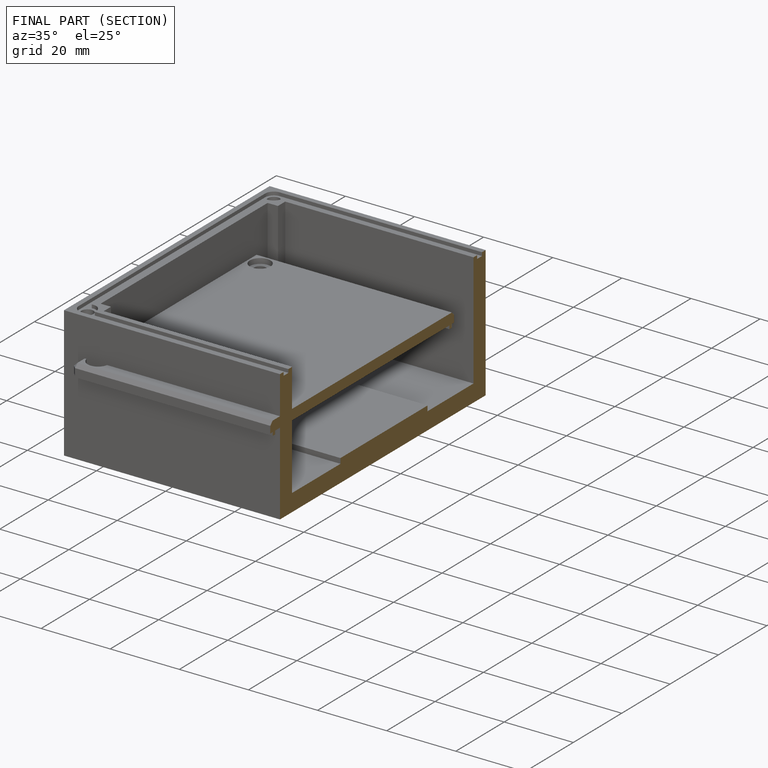
[diagram: finished part — half-section view (interior)]
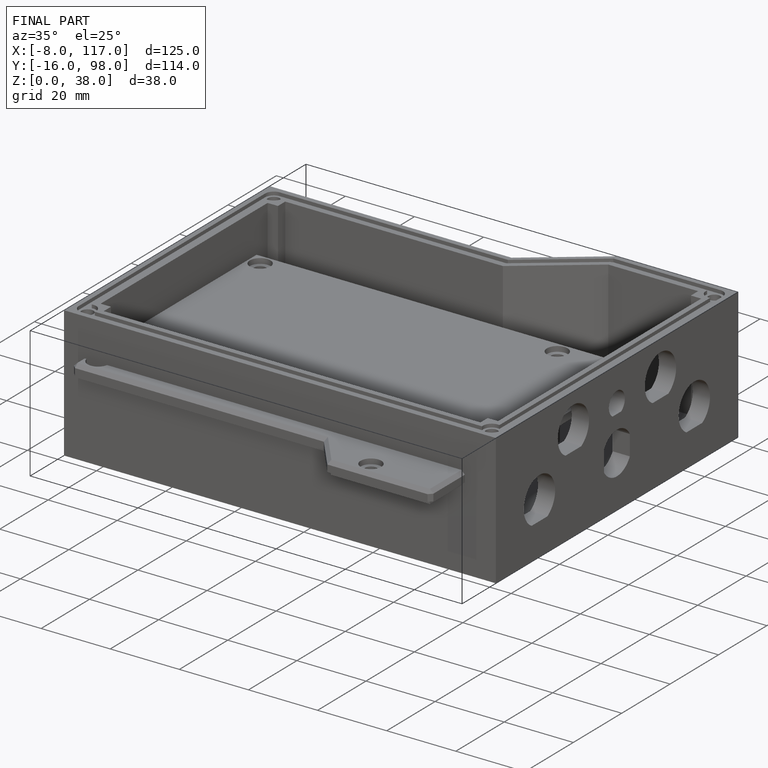
[diagram: finished part — iso view with bounding-box wireframe]
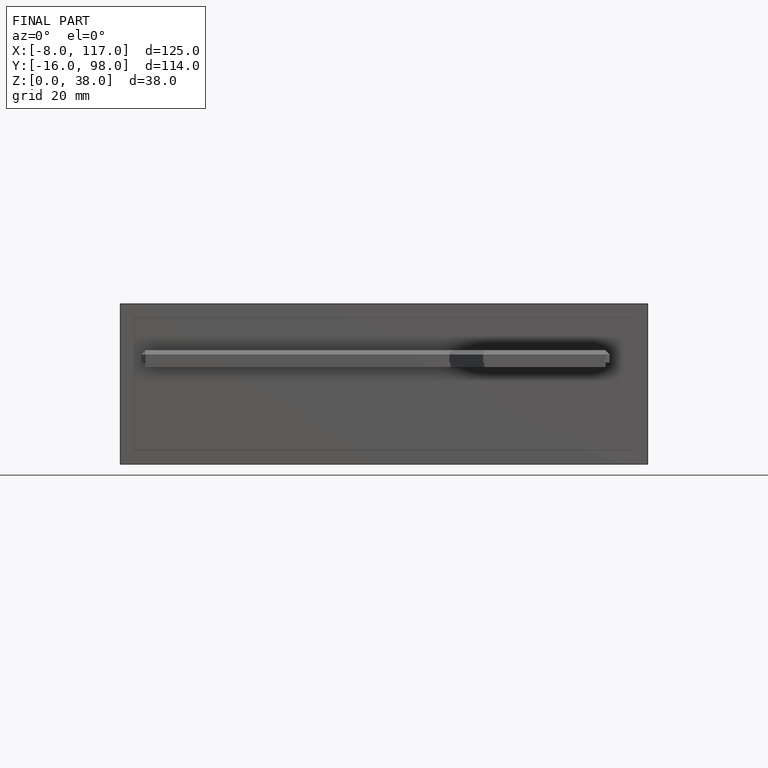
[diagram: finished part — front view with bounding-box wireframe]
